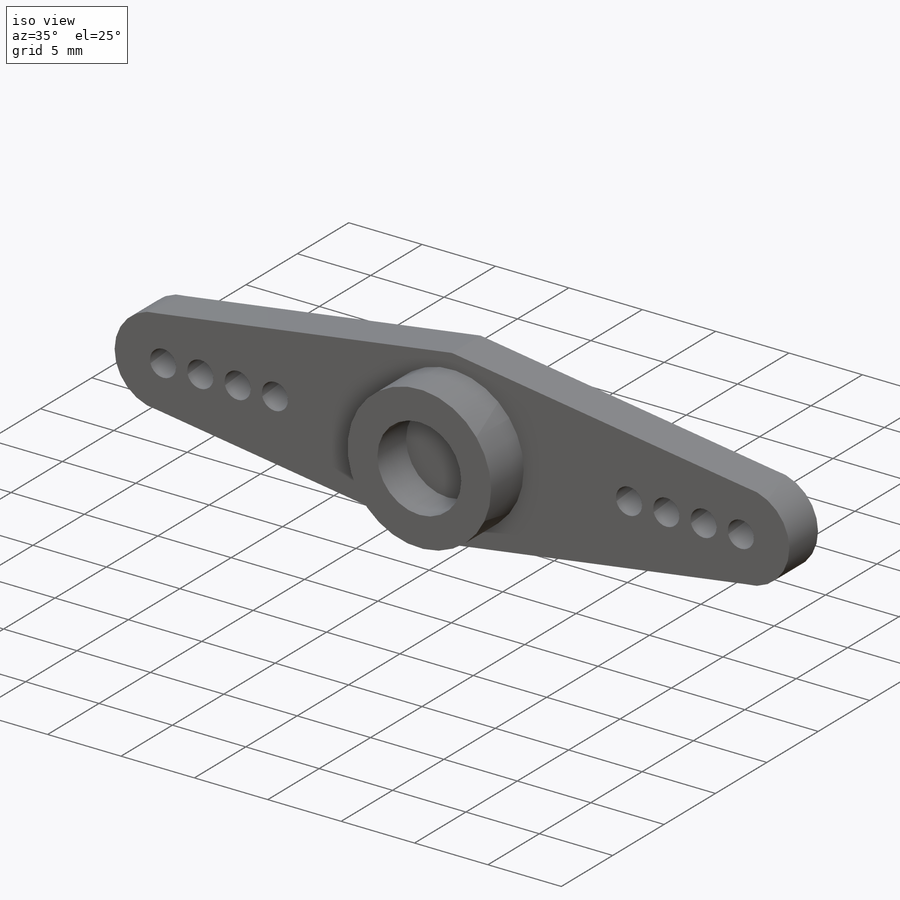
[diagram: iso view]
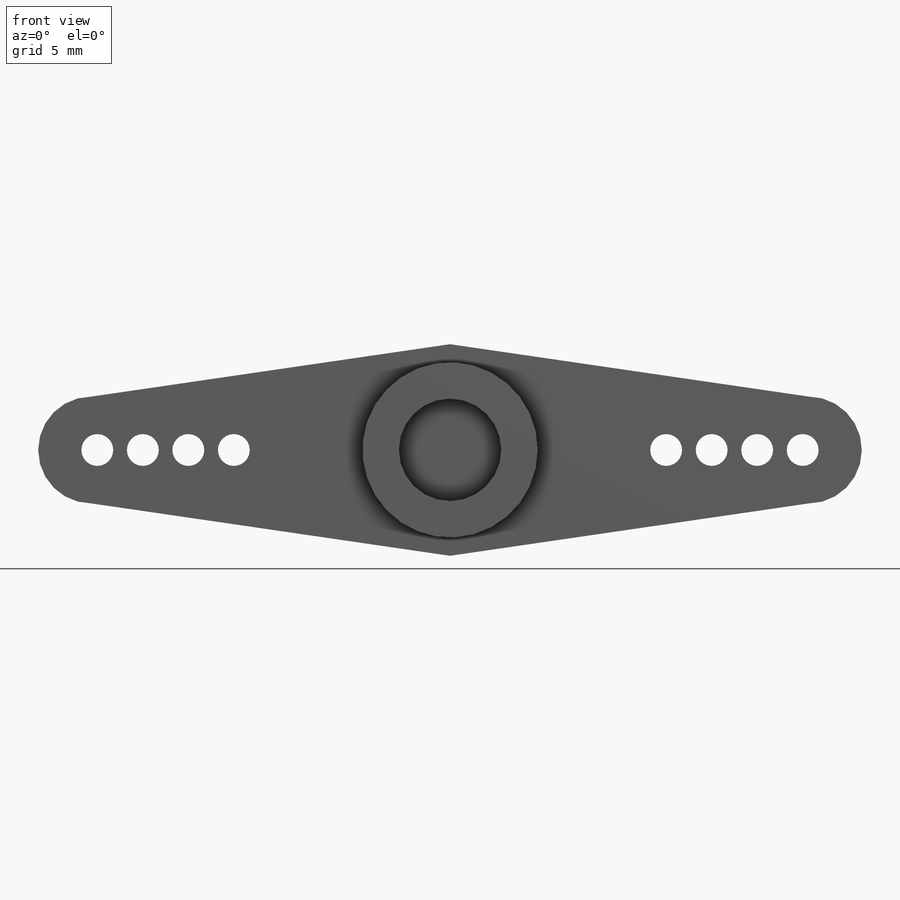
[diagram: front view]
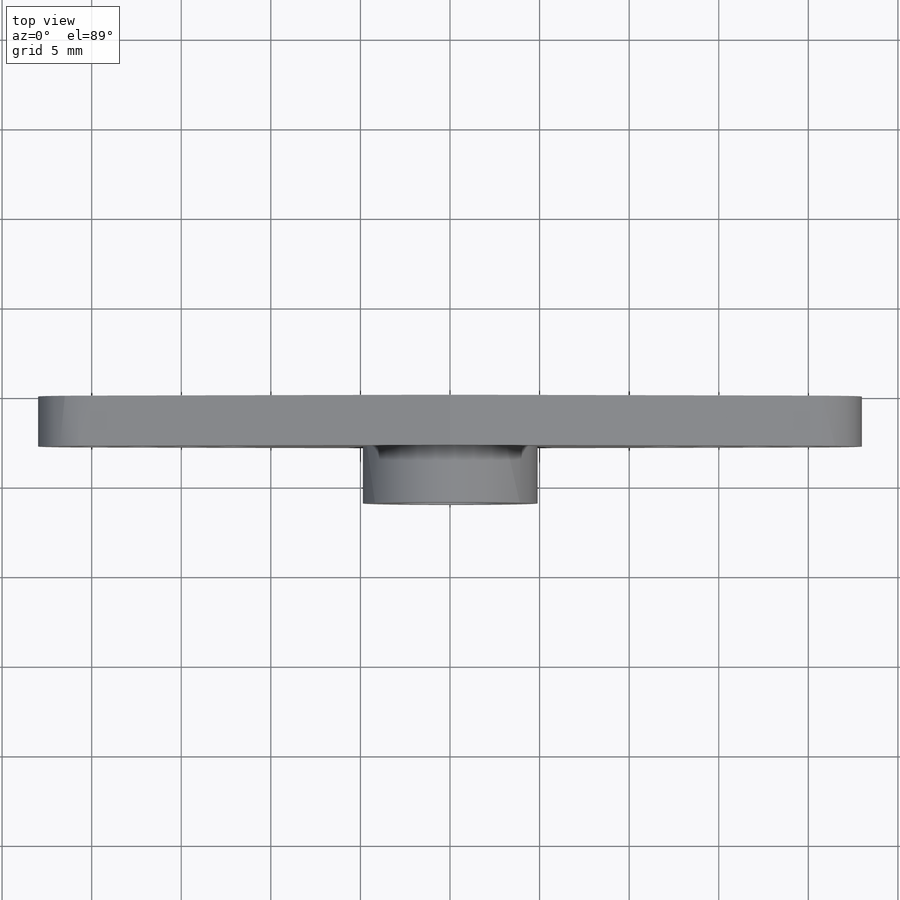
[diagram: top view]
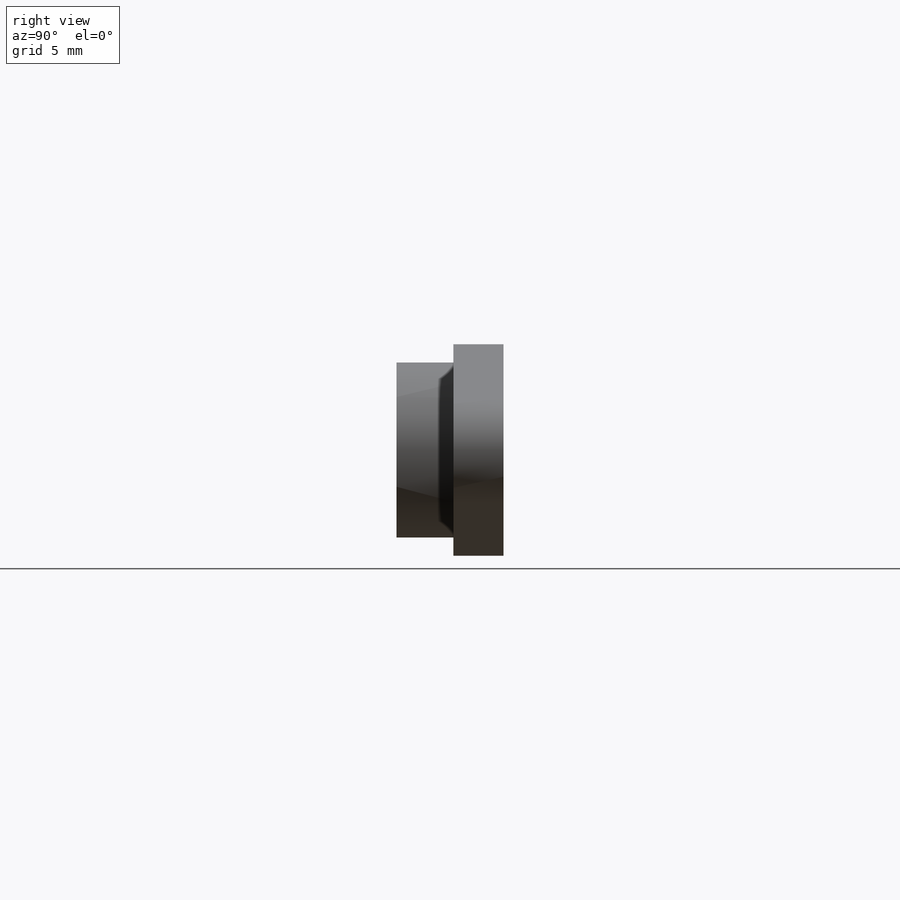
[diagram: right view]
SOLIDWORKS PART (.sldprt)
format: sldprt  version: not decoded by parser v0  size: 237,568 bytes
history: native  units: mm
features: sketch x7, cut_extrude x3, mirror x2, material x1, extrude x1, hole x1, pattern_linear x1 (+12 scaffold rows collapsed)
feature tree (28):
  scaffold x12  (default folders/planes/origin — collapsed)
  material  "Nylon 6/10"
  sketch  "Sketch1"  dims[D1=11.811mm]
  extrude  "Extrude1"  Depth=5.969mm
  sketch  "Sketch2"  dims[D1=~3.819863mm]
  cut_extrude  "Extrude2"  Depth=3.175mm
  sketch  "Sketch3"  dims[D1=~2.574625mm]
  cut_extrude  "Extrude3"  Depth=2.794mm
  sketch  "Sketch4"  dims[D1=12.065mm]
  hole  "#50 (0.07) Diameter Hole1"  Diameter=1.778mm Depth=5.08mm
  sketch  "3DSketch1"
  sketch  "Sketch5"  dims[hole-wizard template sketch: 47 standard entries collapsed; hole parameters kept: c15.Hole Depth=5.08mm c15.D3=~14.816244mm c15.Drill Angle=118.0deg]
  pattern_linear  "LPattern1"  Count1=4 Count2=1 Spacing1=2.54mm Spacing2=2.54mm
  mirror  "Mirror1"
  sketch  "Sketch6"  dims[D1=2.9845mm]
  cut_extrude  "Extrude4"  [1 undecoded]
  mirror  "Mirror2"
decode coverage: 11 of 15 modeling features carry decoded parameters
note: ~ marks probable driven/reference dimensions
note: 1 parameter value undecoded
note: suppression state not decoded; provenance and decode notes live in map.json
